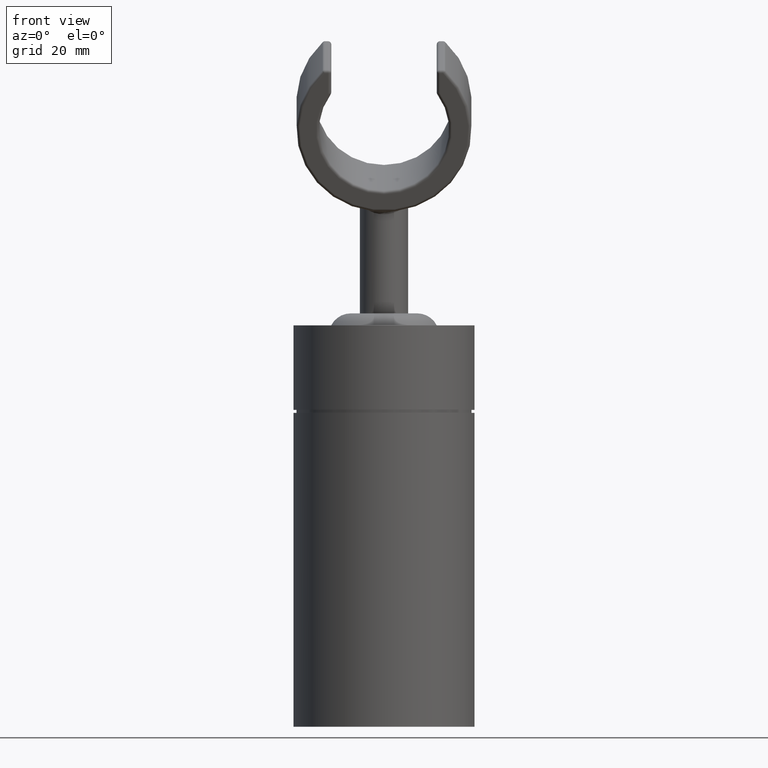
[diagram: clean part render]
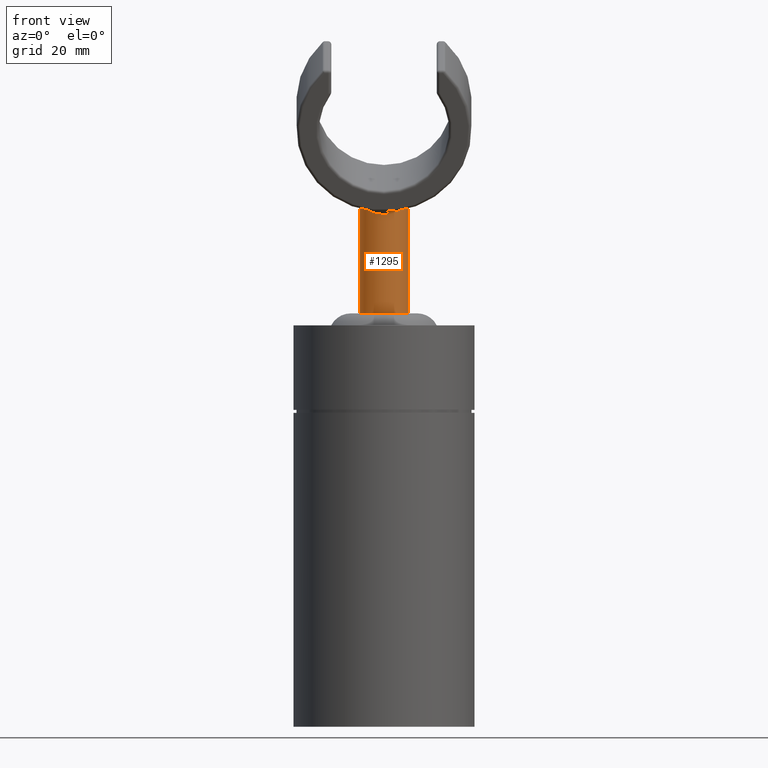
[diagram: same view with one face highlighted and labeled with its STEP entity id]
A machine part, front view. The second image highlights one B-rep face of the part: STEP entity #1295.
In plain terms, the highlighted cylindrical surface (edge-blend (fillet) strip) has radius 4 mm, axis along (0, 0, 1).
Its self-contained STEP definition (entity closure, byte-faithful):
#21=CARTESIAN_POINT('',(0.E0,0.E0,1.65E1));
#22=DIRECTION('',(0.E0,0.E0,1.E0));
#23=DIRECTION('',(-1.E0,0.E0,0.E0));
#24=AXIS2_PLACEMENT_3D('',#21,#22,#23);
#151=DIRECTION('',(0.E0,1.664497909864E-10,1.E0));
#152=VECTOR('',#151,1.871913918007E1);
#153=CARTESIAN_POINT('',(4.E0,0.E0,1.65E1));
#154=LINE('',#153,#152);
#244=CARTESIAN_POINT('',(4.E0,3.115796314109E-9,3.521913918007E1));
#245=CARTESIAN_POINT('',(3.999993891653E0,-2.722186086286E-1,3.511137993791E1));
#246=CARTESIAN_POINT('',(3.944854044865E0,-8.205928681576E-1,3.487334469058E1));
#247=CARTESIAN_POINT('',(3.684292295509E0,-1.634892176598E0,3.445664137403E1));
#248=CARTESIAN_POINT('',(3.253468996463E0,-2.378122715750E0,3.402182190617E1));
#249=CARTESIAN_POINT('',(2.691237509234E0,-2.996553579594E0,3.362184004777E1));
#250=CARTESIAN_POINT('',(2.048200162544E0,-3.464396729454E0,3.329715751436E1));
#251=CARTESIAN_POINT('',(1.372798277191E0,-3.780053467132E0,3.306780306332E1));
#252=CARTESIAN_POINT('',(6.888306757351E-1,-3.960817556685E0,3.293286278214E1));
#253=CARTESIAN_POINT('',(2.272850516776E-1,-3.999999648934E0,3.290323784439E1));
#254=CARTESIAN_POINT('',(1.361981594281E-8,-4.E0,3.290323727050E1));
#256=DIRECTION('',(0.E0,-2.462292428339E-10,1.E0));
#257=VECTOR('',#256,1.871913917701E1);
#258=CARTESIAN_POINT('',(-4.E0,0.E0,1.65E1));
#259=LINE('',#258,#257);
#260=CARTESIAN_POINT('',(1.361981594281E-8,-4.E0,3.290323727050E1));
#261=CARTESIAN_POINT('',(-2.583948681514E-1,-3.999991930745E0,
3.290324956239E1));
#262=CARTESIAN_POINT('',(-7.861016852847E-1,-3.949236468604E0,
3.294165187997E1));
#263=CARTESIAN_POINT('',(-1.567830281947E0,-3.711622432477E0,3.311853707076E1));
#264=CARTESIAN_POINT('',(-2.332569615506E0,-3.291103410809E0,3.342046827564E1));
#265=CARTESIAN_POINT('',(-3.031212322733E0,-2.668119434841E0,3.384029270833E1));
#266=CARTESIAN_POINT('',(-3.586188669793E0,-1.861343040328E0,3.433245803037E1));
#267=CARTESIAN_POINT('',(-3.928203849325E0,-9.378569343057E-1,
3.482049143505E1));
#268=CARTESIAN_POINT('',(-3.999990526278E0,-3.114196994060E-1,
3.509586141382E1));
#269=CARTESIAN_POINT('',(-4.E0,-4.609198976200E-9,3.521913917701E1));
#636=CARTESIAN_POINT('',(4.E0,0.E0,1.65E1));
#637=CARTESIAN_POINT('',(-4.E0,0.E0,1.65E1));
#638=VERTEX_POINT('',#636);
#639=VERTEX_POINT('',#637);
#642=VERTEX_POINT('',#244);
#643=VERTEX_POINT('',#254);
#645=VERTEX_POINT('',#269);
#1282=CARTESIAN_POINT('',(0.E0,0.E0,1.65E1));
#1283=DIRECTION('',(0.E0,0.E0,1.E0));
#1284=DIRECTION('',(1.E0,0.E0,0.E0));
#1285=AXIS2_PLACEMENT_3D('',#1282,#1283,#1284);
#1286=CYLINDRICAL_SURFACE('',#1285,4.E0);
#1287=ORIENTED_EDGE('',*,*,#1205,.F.);
#1288=ORIENTED_EDGE('',*,*,#1009,.F.);
#1289=ORIENTED_EDGE('',*,*,#733,.F.);
#1290=ORIENTED_EDGE('',*,*,#1006,.T.);
#1292=ORIENTED_EDGE('',*,*,#1291,.F.);
#1293=EDGE_LOOP('',(#1287,#1288,#1289,#1290,#1292));
#1294=FACE_OUTER_BOUND('',#1293,.F.);
#1295=ADVANCED_FACE('',(#1294),#1286,.T.);
#25=CIRCLE('',#24,4.E0);
#255=B_SPLINE_CURVE_WITH_KNOTS('',3,(#244,#245,#246,#247,#248,#249,#250,#251,
#252,#253,#254),.UNSPECIFIED.,.F.,.F.,(4,1,1,1,1,1,1,1,4),(0.E0,1.25E-1,2.5E-1,
3.75E-1,5.E-1,6.25E-1,7.5E-1,8.75E-1,1.E0),.UNSPECIFIED.);
#270=B_SPLINE_CURVE_WITH_KNOTS('',3,(#260,#261,#262,#263,#264,#265,#266,#267,
#268,#269),.UNSPECIFIED.,.F.,.F.,(4,1,1,1,1,1,1,4),(0.E0,1.428571428571E-1,
2.857142857143E-1,4.285714285714E-1,5.714285714286E-1,7.142857142857E-1,
8.571428571429E-1,1.E0),.UNSPECIFIED.);
#733=EDGE_CURVE('',#639,#638,#25,.T.);
#1006=EDGE_CURVE('',#639,#645,#259,.T.);
#1009=EDGE_CURVE('',#638,#642,#154,.T.);
#1205=EDGE_CURVE('',#642,#643,#255,.T.);
#1291=EDGE_CURVE('',#643,#645,#270,.T.);